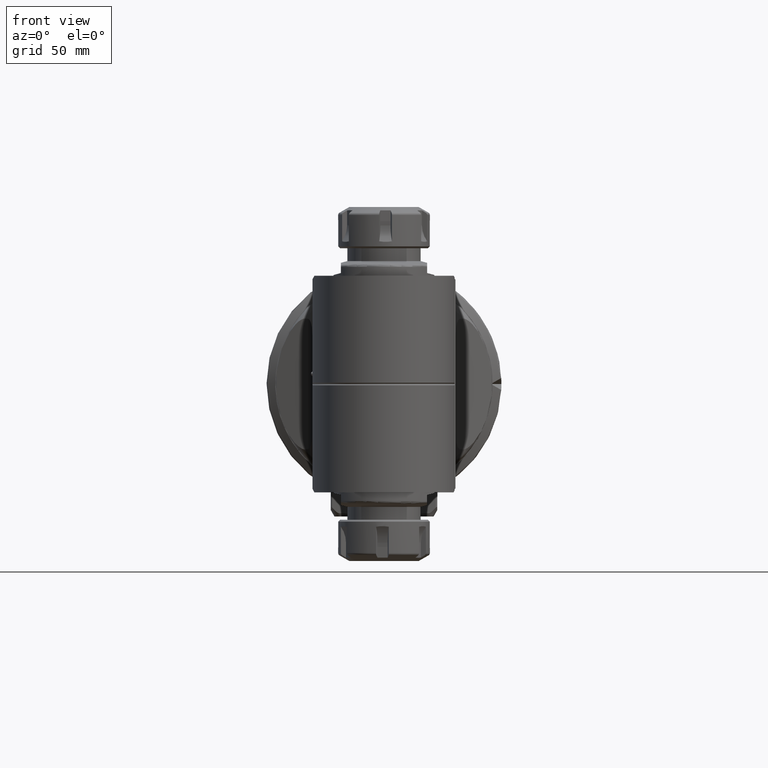
[diagram: clean part render]
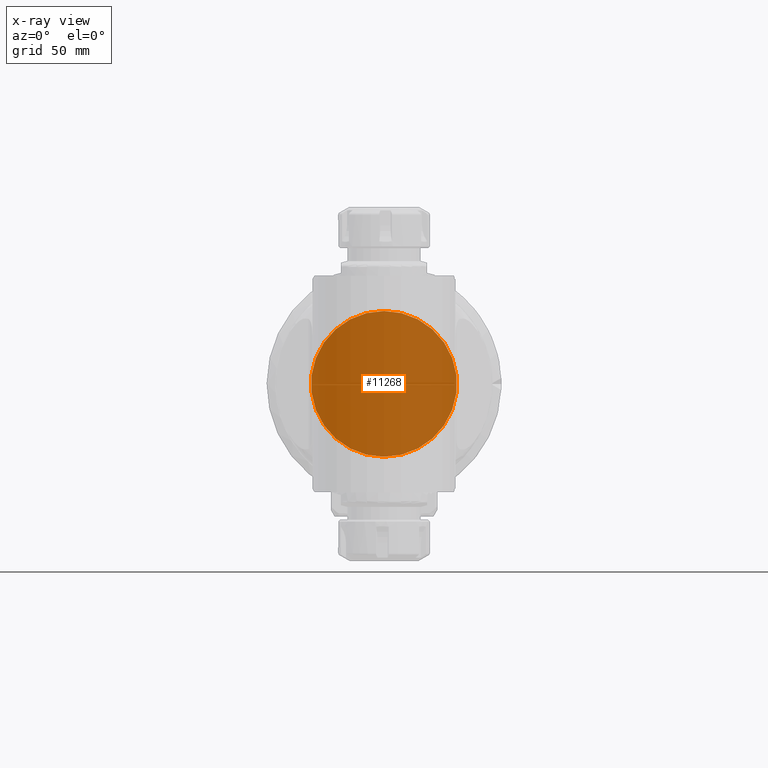
[diagram: x-ray — body ghosted, one internal face saturated and labeled with its STEP entity id]
A machine part, front view, then the same camera in x-ray: the body is ghosted and one INTERNAL B-rep face — a face not visible from any outside direction — is saturated and labeled: STEP entity #11268.
In plain terms, the highlighted planar face has unit normal (0, -1, 0).
Its self-contained STEP definition (entity closure, byte-faithful):
#970=PLANE('',#12454);
#1539=FACE_OUTER_BOUND('',#2291,.T.);
#2291=EDGE_LOOP('',(#9674));
#4288=CIRCLE('',#12429,39.75);
#5255=VERTEX_POINT('',#20405);
#6759=EDGE_CURVE('',#5255,#5255,#4288,.T.);
#9674=ORIENTED_EDGE('',*,*,#6759,.T.);
#11268=ADVANCED_FACE('',(#1539),#970,.T.);
#12429=AXIS2_PLACEMENT_3D('',#20407,#15072,#15073);
#12454=AXIS2_PLACEMENT_3D('',#20497,#15140,#15141);
#15072=DIRECTION('center_axis',(0.,-1.,0.));
#15073=DIRECTION('ref_axis',(8.524641992894E-10,0.,1.));
#15140=DIRECTION('center_axis',(0.,-1.,0.));
#15141=DIRECTION('ref_axis',(0.,0.,-1.));
#20405=CARTESIAN_POINT('',(-3.38854616418243E-8,34.99999976923,-39.75));
#20407=CARTESIAN_POINT('Origin',(0.,34.99999976923,0.));
#20497=CARTESIAN_POINT('Origin',(0.,34.99999976923,-24.));